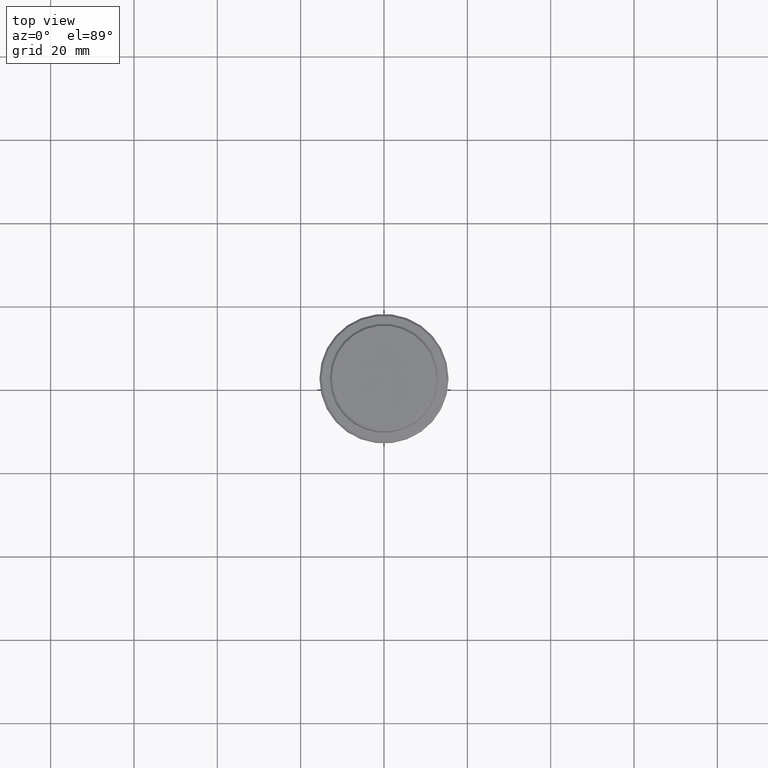
[diagram: clean part render]
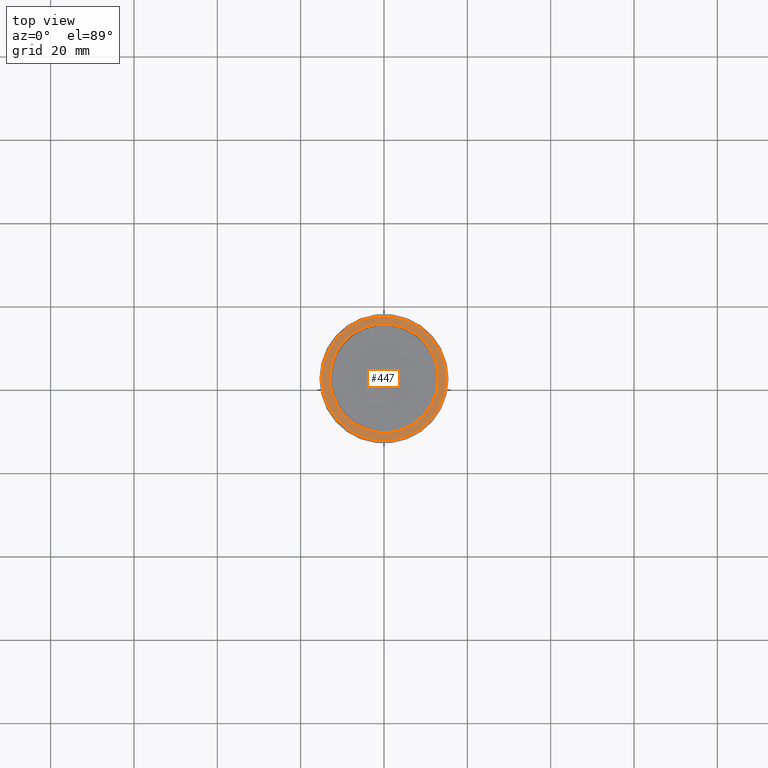
[diagram: same view with one face highlighted and labeled with its STEP entity id]
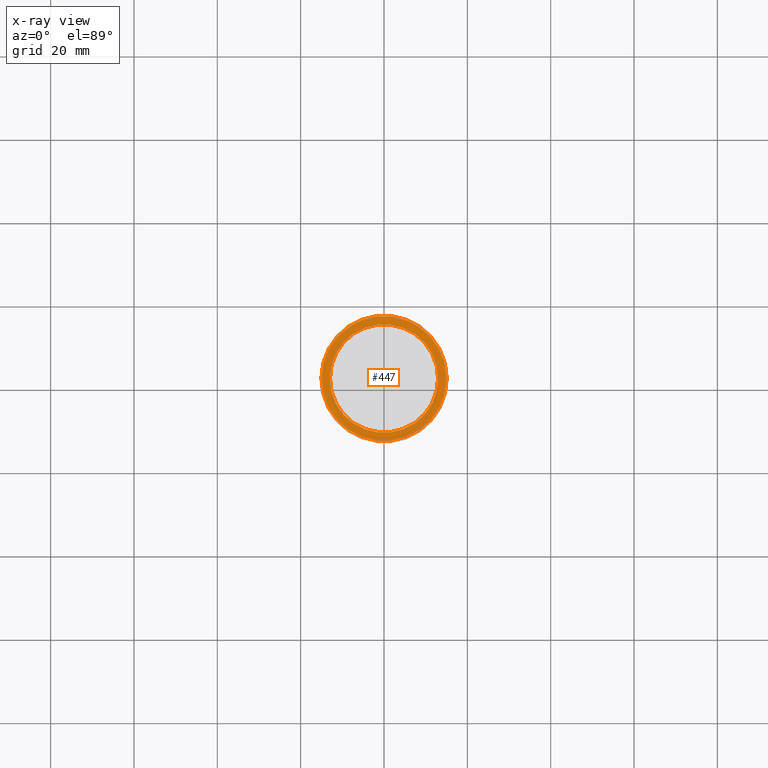
[diagram: x-ray of the same camera — body ghosted, the highlighted face saturated]
A machine part, top view. The second image highlights one B-rep face of the part: STEP entity #447.
The next image is the same camera in x-ray: the body ghosted, the highlighted face saturated — about 0% of this face is hidden behind the body in this view.
In plain terms, the highlighted planar face has unit normal (0, -0, 1).
Its self-contained STEP definition (entity closure, byte-faithful):
#12 = CARTESIAN_POINT ( 'NONE',  ( 14.99999999999998579, 1.867586368699712587E-15, -9.000000000000000000 ) ) ;
#84 = AXIS2_PLACEMENT_3D ( 'NONE', #752, #1299, #1057 ) ;
#188 = PLANE ( 'NONE',  #84 ) ;
#191 = ORIENTED_EDGE ( 'NONE', *, *, #881, .T. ) ;
#215 = AXIS2_PLACEMENT_3D ( 'NONE', #566, #662, #652 ) ;
#230 = ORIENTED_EDGE ( 'NONE', *, *, #748, .T. ) ;
#306 = FACE_BOUND ( 'NONE', #1380, .T. ) ;
#316 = DIRECTION ( 'NONE',  ( 0.000000000000000000, 0.000000000000000000, -1.000000000000000000 ) ) ;
#399 = DIRECTION ( 'NONE',  ( 1.000000000000000000, 0.000000000000000000, 0.000000000000000000 ) ) ;
#400 = FACE_OUTER_BOUND ( 'NONE', #1278, .T. ) ;
#447 = ADVANCED_FACE ( 'NONE', ( #400, #306 ), #188, .T. ) ;
#472 = DIRECTION ( 'NONE',  ( 1.000000000000000000, 0.000000000000000000, 0.000000000000000000 ) ) ;
#489 = DIRECTION ( 'NONE',  ( 0.000000000000000000, 0.000000000000000000, -1.000000000000000000 ) ) ;
#490 = CIRCLE ( 'NONE', #215, 14.99999999999998579 ) ;
#566 = CARTESIAN_POINT ( 'NONE',  ( 0.000000000000000000, 0.000000000000000000, -9.000000000000000000 ) ) ;
#608 = EDGE_CURVE ( 'NONE', #1160, #618, #490, .T. ) ;
#618 = VERTEX_POINT ( 'NONE', #12 ) ;
#637 = CARTESIAN_POINT ( 'NONE',  ( 0.000000000000000000, 0.000000000000000000, -9.000000000000000000 ) ) ;
#652 = DIRECTION ( 'NONE',  ( 1.000000000000000000, 0.000000000000000000, 0.000000000000000000 ) ) ;
#662 = DIRECTION ( 'NONE',  ( -0.000000000000000000, -0.000000000000000000, 1.000000000000000000 ) ) ;
#721 = ORIENTED_EDGE ( 'NONE', *, *, #927, .T. ) ;
#748 = EDGE_CURVE ( 'NONE', #975, #906, #1293, .T. ) ;
#751 = CARTESIAN_POINT ( 'NONE',  ( -14.99999999999998579, 0.000000000000000000, -9.000000000000000000 ) ) ;
#752 = CARTESIAN_POINT ( 'NONE',  ( 0.000000000000000000, 12.49999999999999289, -9.000000000000000000 ) ) ;
#806 = CARTESIAN_POINT ( 'NONE',  ( 0.000000000000000000, 0.000000000000000000, -9.000000000000000000 ) ) ;
#824 = CIRCLE ( 'NONE', #871, 14.99999999999998579 ) ;
#833 = CARTESIAN_POINT ( 'NONE',  ( -12.99999999999999467, 1.592040838891558504E-15, -9.000000000000000000 ) ) ;
#839 = ORIENTED_EDGE ( 'NONE', *, *, #608, .T. ) ;
#871 = AXIS2_PLACEMENT_3D ( 'NONE', #637, #1037, #399 ) ;
#881 = EDGE_CURVE ( 'NONE', #906, #975, #1318, .T. ) ;
#906 = VERTEX_POINT ( 'NONE', #1409 ) ;
#927 = EDGE_CURVE ( 'NONE', #618, #1160, #824, .T. ) ;
#948 = DIRECTION ( 'NONE',  ( 1.000000000000000000, 0.000000000000000000, 0.000000000000000000 ) ) ;
#975 = VERTEX_POINT ( 'NONE', #833 ) ;
#1037 = DIRECTION ( 'NONE',  ( -0.000000000000000000, -0.000000000000000000, 1.000000000000000000 ) ) ;
#1057 = DIRECTION ( 'NONE',  ( 1.000000000000000000, 0.000000000000000000, 0.000000000000000000 ) ) ;
#1117 = AXIS2_PLACEMENT_3D ( 'NONE', #806, #489, #472 ) ;
#1160 = VERTEX_POINT ( 'NONE', #751 ) ;
#1278 = EDGE_LOOP ( 'NONE', ( #839, #721 ) ) ;
#1282 = CARTESIAN_POINT ( 'NONE',  ( 0.000000000000000000, 0.000000000000000000, -9.000000000000000000 ) ) ;
#1293 = CIRCLE ( 'NONE', #1117, 12.99999999999999467 ) ;
#1299 = DIRECTION ( 'NONE',  ( 0.000000000000000000, -0.000000000000000000, 1.000000000000000000 ) ) ;
#1318 = CIRCLE ( 'NONE', #1361, 12.99999999999999467 ) ;
#1361 = AXIS2_PLACEMENT_3D ( 'NONE', #1282, #316, #948 ) ;
#1380 = EDGE_LOOP ( 'NONE', ( #191, #230 ) ) ;
#1409 = CARTESIAN_POINT ( 'NONE',  ( 12.99999999999999467, 0.000000000000000000, -9.000000000000000000 ) ) ;